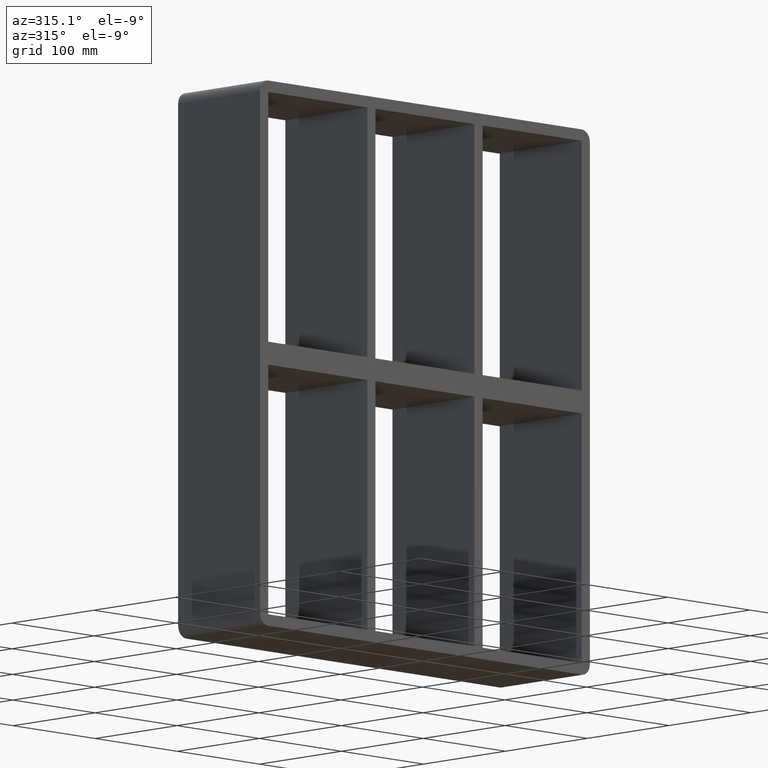
[diagram: clean part render]
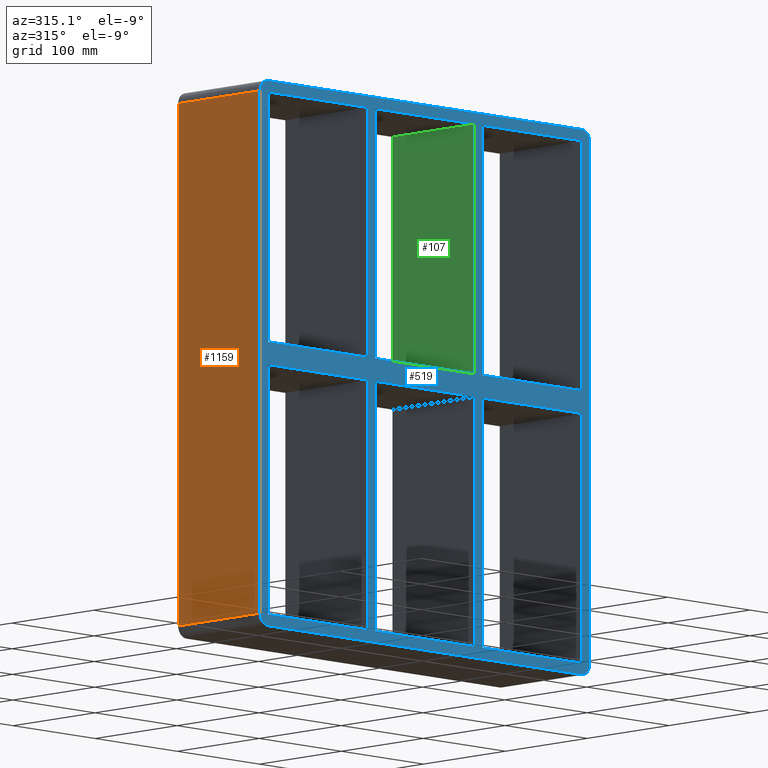
[diagram: same view with three faces highlighted in distinct colors, each labeled with its STEP entity id]
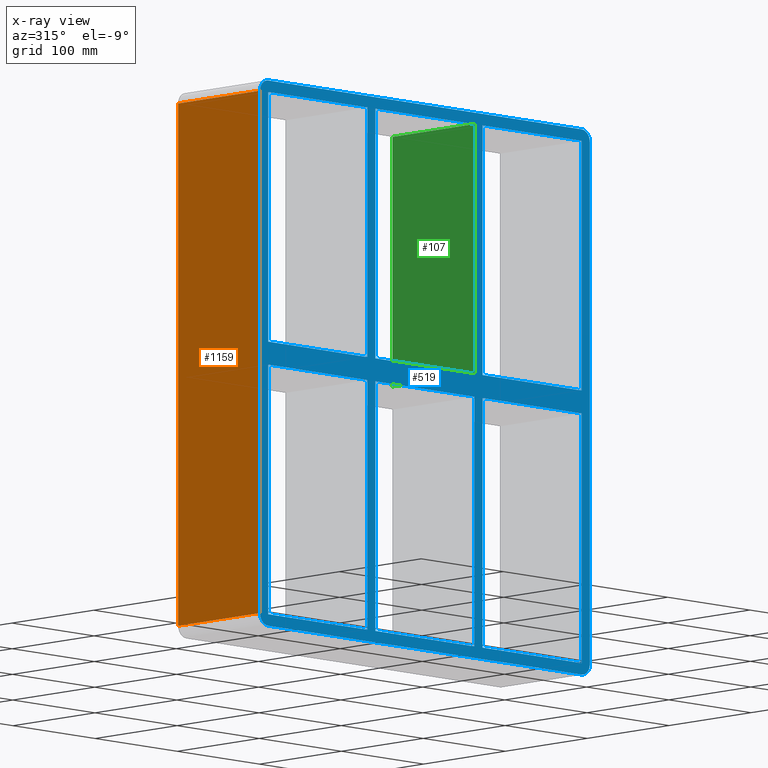
[diagram: x-ray of the same camera — body ghosted, the three highlighted faces saturated]
A machine part, auxiliary view with three faces highlighted in distinct colors.
The next image is the same camera in x-ray (body ghosted, the three faces saturated) — at least one of them is partly hidden behind the body in this view.
Their STEP definitions:

[orange] entity #1159 — the highlighted planar face has unit normal (-1, 0, 0).
#297=CARTESIAN_POINT('',(-200.75000000000003,-3.0,-227.99999999999997));
#298=VERTEX_POINT('',#297);
#348=CARTESIAN_POINT('',(-200.75000000000003,-3.0,228.00000000000006));
#349=VERTEX_POINT('',#348);
#357=CARTESIAN_POINT('',(-200.75000000000003,-3.0,228.00000000000003));
#358=DIRECTION('',(0.0,0.0,-1.0));
#359=VECTOR('',#358,456.0);
#360=LINE('',#357,#359);
#361=EDGE_CURVE('',#349,#298,#360,.T.);
#789=CARTESIAN_POINT('',(-200.75000000000003,97.0,-227.99999999999997));
#790=VERTEX_POINT('',#789);
#800=CARTESIAN_POINT('',(-200.75000000000003,97.0,228.00000000000006));
#801=VERTEX_POINT('',#800);
#802=CARTESIAN_POINT('',(-200.75000000000003,97.0,-227.99999999999997));
#803=DIRECTION('',(0.0,0.0,1.0));
#804=VECTOR('',#803,456.0);
#805=LINE('',#802,#804);
#806=EDGE_CURVE('',#790,#801,#805,.T.);
#1037=CARTESIAN_POINT('',(-200.75000000000003,-3.0,-227.99999999999997));
#1038=DIRECTION('',(0.0,1.0,0.0));
#1039=VECTOR('',#1038,100.0);
#1040=LINE('',#1037,#1039);
#1041=EDGE_CURVE('',#298,#790,#1040,.T.);
#1125=CARTESIAN_POINT('',(-200.75000000000003,97.0,228.00000000000006));
#1126=DIRECTION('',(0.0,-1.0,0.0));
#1127=VECTOR('',#1126,100.0);
#1128=LINE('',#1125,#1127);
#1129=EDGE_CURVE('',#801,#349,#1128,.T.);
#1148=CARTESIAN_POINT('',(-200.75000000000003,0.0,-237.99999999999997));
#1149=DIRECTION('',(-1.0,0.0,0.0));
#1150=DIRECTION('',(0.0,0.0,1.0));
#1151=AXIS2_PLACEMENT_3D('',#1148,#1149,#1150);
#1152=PLANE('',#1151);
#1153=ORIENTED_EDGE('',*,*,#1041,.F.);
#1154=ORIENTED_EDGE('',*,*,#361,.F.);
#1155=ORIENTED_EDGE('',*,*,#1129,.F.);
#1156=ORIENTED_EDGE('',*,*,#806,.F.);
#1157=EDGE_LOOP('',(#1153,#1154,#1155,#1156));
#1158=FACE_OUTER_BOUND('',#1157,.T.);
#1159=ADVANCED_FACE('',(#1158),#1152,.T.);

[blue] entity #519 — the highlighted planar face has unit normal (0, 1, 0).
#73=CARTESIAN_POINT('',(60.249999999998735,-3.0,10.0));
#74=VERTEX_POINT('',#73);
#83=CARTESIAN_POINT('',(60.249999999998693,-3.0,228.00000000000006));
#84=VERTEX_POINT('',#83);
#85=CARTESIAN_POINT('',(60.249999999998728,-3.0,10.0));
#86=DIRECTION('',(0.0,0.0,1.0));
#87=VECTOR('',#86,218.00000000000006);
#88=LINE('',#85,#87);
#89=EDGE_CURVE('',#74,#84,#88,.T.);
#115=CARTESIAN_POINT('',(60.249999999998735,-3.0,-10.000000000015525));
#116=VERTEX_POINT('',#115);
#131=CARTESIAN_POINT('',(60.249999999998778,-3.0,-228.00000000000006));
#132=VERTEX_POINT('',#131);
#139=CARTESIAN_POINT('',(60.249999999998778,-3.0,-228.00000000000006));
#140=DIRECTION('',(0.0,0.0,1.0));
#141=VECTOR('',#140,217.99999999998451);
#142=LINE('',#139,#141);
#143=EDGE_CURVE('',#132,#116,#142,.T.);
#155=CARTESIAN_POINT('',(70.249999999985448,-3.0,10.0));
#156=VERTEX_POINT('',#155);
#171=CARTESIAN_POINT('',(70.249999999985448,-3.0,228.00000000000006));
#172=VERTEX_POINT('',#171);
#179=CARTESIAN_POINT('',(70.249999999985448,-3.0,228.00000000000006));
#180=DIRECTION('',(0.0,0.0,-1.0));
#181=VECTOR('',#180,218.00000000000006);
#182=LINE('',#179,#181);
#183=EDGE_CURVE('',#172,#156,#182,.T.);
#193=CARTESIAN_POINT('',(70.249999999985448,-3.0,-10.000000000015525));
#194=VERTEX_POINT('',#193);
#203=CARTESIAN_POINT('',(70.249999999985448,-3.0,-227.99999999997468));
#204=VERTEX_POINT('',#203);
#205=CARTESIAN_POINT('',(70.249999999985448,-3.0,-10.000000000015518));
#206=DIRECTION('',(0.0,0.0,-1.0));
#207=VECTOR('',#206,217.99999999995913);
#208=LINE('',#205,#207);
#209=EDGE_CURVE('',#194,#204,#208,.T.);
#242=CARTESIAN_POINT('',(-60.250000000014552,-3.0,-227.99999999997468));
#243=VERTEX_POINT('',#242);
#250=CARTESIAN_POINT('',(60.249999999998778,-3.0,-228.00000000000006));
#251=DIRECTION('',(-1.0,0.0,0.0));
#252=VECTOR('',#251,120.50000000001333);
#253=LINE('',#250,#252);
#254=EDGE_CURVE('',#132,#243,#253,.T.);
#265=CARTESIAN_POINT('',(190.75,-3.0,-228.00000000000006));
#266=VERTEX_POINT('',#265);
#267=CARTESIAN_POINT('',(190.75,-3.0,-228.00000000000006));
#268=DIRECTION('',(-1.0,0.0,0.0));
#269=VECTOR('',#268,120.50000000001454);
#270=LINE('',#267,#269);
#271=EDGE_CURVE('',#266,#204,#270,.T.);
#290=CARTESIAN_POINT('',(0.0,-3.0,2.915047E-014));
#291=DIRECTION('',(0.0,1.0,0.0));
#292=DIRECTION('',(0.0,0.0,1.0));
#293=AXIS2_PLACEMENT_3D('',#290,#291,#292);
#294=PLANE('',#293);
#295=CARTESIAN_POINT('',(-190.75000000000003,-3.0,-237.99999999999997));
#296=VERTEX_POINT('',#295);
#297=CARTESIAN_POINT('',(-200.75000000000003,-3.0,-227.99999999999997));
#298=VERTEX_POINT('',#297);
#299=CARTESIAN_POINT('',(-190.75000000000003,-3.0,-227.99999999999997));
#300=DIRECTION('',(0.0,1.0,0.0));
#301=DIRECTION('',(-0.707106781186547,0.0,-0.707106781186547));
#302=AXIS2_PLACEMENT_3D('',#299,#300,#301);
#303=CIRCLE('',#302,9.999999999999998);
#304=EDGE_CURVE('',#296,#298,#303,.T.);
#305=ORIENTED_EDGE('',*,*,#304,.F.);
#306=CARTESIAN_POINT('',(190.75000000000003,-3.0,-237.99999999999997));
#307=VERTEX_POINT('',#306);
#308=CARTESIAN_POINT('',(-190.75000000000003,-3.0,-237.99999999999997));
#309=DIRECTION('',(1.0,0.0,0.0));
#310=VECTOR('',#309,381.50000000000006);
#311=LINE('',#308,#310);
#312=EDGE_CURVE('',#296,#307,#311,.T.);
#313=ORIENTED_EDGE('',*,*,#312,.T.);
#314=CARTESIAN_POINT('',(200.75000000000003,-3.0,-227.99999999999997));
#315=VERTEX_POINT('',#314);
#316=CARTESIAN_POINT('',(190.75000000000003,-3.0,-227.99999999999997));
#317=DIRECTION('',(0.0,1.0,0.0));
#318=DIRECTION('',(0.707106781186547,0.0,-0.707106781186547));
#319=AXIS2_PLACEMENT_3D('',#316,#317,#318);
#320=CIRCLE('',#319,9.999999999999998);
#321=EDGE_CURVE('',#315,#307,#320,.T.);
#322=ORIENTED_EDGE('',*,*,#321,.F.);
#323=CARTESIAN_POINT('',(200.75000000000003,-3.0,228.00000000000006));
#324=VERTEX_POINT('',#323);
#325=CARTESIAN_POINT('',(200.75000000000003,-3.0,-227.99999999999994));
#326=DIRECTION('',(0.0,0.0,1.0));
#327=VECTOR('',#326,456.0);
#328=LINE('',#325,#327);
#329=EDGE_CURVE('',#315,#324,#328,.T.);
#330=ORIENTED_EDGE('',*,*,#329,.T.);
#331=CARTESIAN_POINT('',(190.75000000000003,-3.0,238.00000000000006));
#332=VERTEX_POINT('',#331);
#333=CARTESIAN_POINT('',(190.75000000000003,-3.0,228.00000000000006));
#334=DIRECTION('',(0.0,1.0,0.0));
#335=DIRECTION('',(0.707106781186547,0.0,0.707106781186547));
#336=AXIS2_PLACEMENT_3D('',#333,#334,#335);
#337=CIRCLE('',#336,9.999999999999998);
#338=EDGE_CURVE('',#332,#324,#337,.T.);
#339=ORIENTED_EDGE('',*,*,#338,.F.);
#340=CARTESIAN_POINT('',(-190.75000000000003,-3.0,238.00000000000006));
#341=VERTEX_POINT('',#340);
#342=CARTESIAN_POINT('',(190.75000000000003,-3.0,238.00000000000006));
#343=DIRECTION('',(-1.0,0.0,0.0));
#344=VECTOR('',#343,381.50000000000006);
#345=LINE('',#342,#344);
#346=EDGE_CURVE('',#332,#341,#345,.T.);
#347=ORIENTED_EDGE('',*,*,#346,.T.);
#348=CARTESIAN_POINT('',(-200.75000000000003,-3.0,228.00000000000006));
#349=VERTEX_POINT('',#348);
#350=CARTESIAN_POINT('',(-190.75000000000003,-3.0,228.00000000000006));
#351=DIRECTION('',(0.0,1.0,0.0));
#352=DIRECTION('',(-0.707106781186547,0.0,0.707106781186547));
#353=AXIS2_PLACEMENT_3D('',#350,#351,#352);
#354=CIRCLE('',#353,9.999999999999998);
#355=EDGE_CURVE('',#349,#341,#354,.T.);
#356=ORIENTED_EDGE('',*,*,#355,.F.);
#357=CARTESIAN_POINT('',(-200.75000000000003,-3.0,228.00000000000003));
#358=DIRECTION('',(0.0,0.0,-1.0));
#359=VECTOR('',#358,456.0);
#360=LINE('',#357,#359);
#361=EDGE_CURVE('',#349,#298,#360,.T.);
#362=ORIENTED_EDGE('',*,*,#361,.T.);
#363=EDGE_LOOP('',(#305,#313,#322,#330,#339,#347,#356,#362));
#364=FACE_OUTER_BOUND('',#363,.T.);
#365=ORIENTED_EDGE('',*,*,#254,.T.);
#366=CARTESIAN_POINT('',(-60.250000000014552,-3.0,-10.000000000015586));
#367=VERTEX_POINT('',#366);
#368=CARTESIAN_POINT('',(-60.250000000014552,-3.0,-10.000000000015575));
#369=DIRECTION('',(0.0,0.0,-1.0));
#370=VECTOR('',#369,217.99999999995907);
#371=LINE('',#368,#370);
#372=EDGE_CURVE('',#367,#243,#371,.T.);
#373=ORIENTED_EDGE('',*,*,#372,.F.);
#374=CARTESIAN_POINT('',(60.249999999998749,-3.0,-10.000000000015545));
#375=DIRECTION('',(-1.0,0.0,0.0));
#376=VECTOR('',#375,120.5000000000133);
#377=LINE('',#374,#376);
#378=EDGE_CURVE('',#116,#367,#377,.T.);
#379=ORIENTED_EDGE('',*,*,#378,.F.);
#380=ORIENTED_EDGE('',*,*,#143,.F.);
#381=EDGE_LOOP('',(#365,#373,#379,#380));
#382=FACE_BOUND('',#381,.T.);
#383=CARTESIAN_POINT('',(-60.250000000014552,-3.0,10.0));
#384=VERTEX_POINT('',#383);
#385=CARTESIAN_POINT('',(-60.250000000014552,-3.0,10.0));
#386=DIRECTION('',(1.0,0.0,0.0));
#387=VECTOR('',#386,120.5000000000133);
#388=LINE('',#385,#387);
#389=EDGE_CURVE('',#384,#74,#388,.T.);
#390=ORIENTED_EDGE('',*,*,#389,.F.);
#391=CARTESIAN_POINT('',(-60.250000000014552,-3.0,228.00000000000006));
#392=VERTEX_POINT('',#391);
#393=CARTESIAN_POINT('',(-60.250000000014552,-3.0,228.00000000000006));
#394=DIRECTION('',(0.0,0.0,-1.0));
#395=VECTOR('',#394,218.00000000000006);
#396=LINE('',#393,#395);
#397=EDGE_CURVE('',#392,#384,#396,.T.);
#398=ORIENTED_EDGE('',*,*,#397,.F.);
#399=CARTESIAN_POINT('',(-60.250000000014552,-3.0,228.00000000000006));
#400=DIRECTION('',(1.0,0.0,0.0));
#401=VECTOR('',#400,120.50000000001323);
#402=LINE('',#399,#401);
#403=EDGE_CURVE('',#392,#84,#402,.T.);
#404=ORIENTED_EDGE('',*,*,#403,.T.);
#405=ORIENTED_EDGE('',*,*,#89,.F.);
#406=EDGE_LOOP('',(#390,#398,#404,#405));
#407=FACE_BOUND('',#406,.T.);
#408=ORIENTED_EDGE('',*,*,#183,.F.);
#409=CARTESIAN_POINT('',(190.75,-3.0,228.00000000000006));
#410=VERTEX_POINT('',#409);
#411=CARTESIAN_POINT('',(70.249999999985462,-3.0,228.00000000000006));
#412=DIRECTION('',(1.0,0.0,0.0));
#413=VECTOR('',#412,120.50000000001454);
#414=LINE('',#411,#413);
#415=EDGE_CURVE('',#172,#410,#414,.T.);
#416=ORIENTED_EDGE('',*,*,#415,.T.);
#417=CARTESIAN_POINT('',(190.74999999999989,-3.0,10.0));
#418=VERTEX_POINT('',#417);
#419=CARTESIAN_POINT('',(190.75,-3.0,228.00000000000006));
#420=DIRECTION('',(0.0,0.0,-1.0));
#421=VECTOR('',#420,218.00000000000006);
#422=LINE('',#419,#421);
#423=EDGE_CURVE('',#410,#418,#422,.T.);
#424=ORIENTED_EDGE('',*,*,#423,.T.);
#425=CARTESIAN_POINT('',(70.249999999985477,-3.0,10.0));
#426=DIRECTION('',(1.0,0.0,0.0));
#427=VECTOR('',#426,120.50000000001444);
#428=LINE('',#425,#427);
#429=EDGE_CURVE('',#156,#418,#428,.T.);
#430=ORIENTED_EDGE('',*,*,#429,.F.);
#431=EDGE_LOOP('',(#408,#416,#424,#430));
#432=FACE_BOUND('',#431,.T.);
#433=ORIENTED_EDGE('',*,*,#209,.F.);
#434=CARTESIAN_POINT('',(190.75000000000728,-3.0,-10.000000000015499));
#435=VERTEX_POINT('',#434);
#436=CARTESIAN_POINT('',(190.75000000000728,-3.0,-10.000000000015499));
#437=DIRECTION('',(-1.0,0.0,0.0));
#438=VECTOR('',#437,120.50000000002183);
#439=LINE('',#436,#438);
#440=EDGE_CURVE('',#435,#194,#439,.T.);
#441=ORIENTED_EDGE('',*,*,#440,.F.);
#442=CARTESIAN_POINT('',(190.75,-3.0,-10.000000000015504));
#443=DIRECTION('',(0.0,0.0,-1.0));
#444=VECTOR('',#443,217.99999999998454);
#445=LINE('',#442,#444);
#446=EDGE_CURVE('',#435,#266,#445,.T.);
#447=ORIENTED_EDGE('',*,*,#446,.T.);
#448=ORIENTED_EDGE('',*,*,#271,.T.);
#449=EDGE_LOOP('',(#433,#441,#447,#448));
#450=FACE_BOUND('',#449,.T.);
#451=CARTESIAN_POINT('',(-70.250000000001265,-3.0,-10.000000000015589));
#452=VERTEX_POINT('',#451);
#453=CARTESIAN_POINT('',(-190.74999999999974,-3.0,-10.000000000015632));
#454=VERTEX_POINT('',#453);
#455=CARTESIAN_POINT('',(-70.250000000001251,-3.0,-10.000000000015589));
#456=DIRECTION('',(-1.0,0.0,0.0));
#457=VECTOR('',#456,120.49999999999852);
#458=LINE('',#455,#457);
#459=EDGE_CURVE('',#452,#454,#458,.T.);
#460=ORIENTED_EDGE('',*,*,#459,.F.);
#461=CARTESIAN_POINT('',(-70.250000000001222,-3.0,-228.00000000000006));
#462=VERTEX_POINT('',#461);
#463=CARTESIAN_POINT('',(-70.250000000001222,-3.0,-228.00000000000006));
#464=DIRECTION('',(0.0,0.0,1.0));
#465=VECTOR('',#464,217.99999999998445);
#466=LINE('',#463,#465);
#467=EDGE_CURVE('',#462,#452,#466,.T.);
#468=ORIENTED_EDGE('',*,*,#467,.F.);
#469=CARTESIAN_POINT('',(-190.75000000000006,-3.0,-228.00000000000006));
#470=VERTEX_POINT('',#469);
#471=CARTESIAN_POINT('',(-70.250000000001194,-3.0,-228.00000000000006));
#472=DIRECTION('',(-1.0,0.0,0.0));
#473=VECTOR('',#472,120.49999999999886);
#474=LINE('',#471,#473);
#475=EDGE_CURVE('',#462,#470,#474,.T.);
#476=ORIENTED_EDGE('',*,*,#475,.T.);
#477=CARTESIAN_POINT('',(-190.75000000000003,-3.0,-228.00000000000006));
#478=DIRECTION('',(0.0,0.0,1.0));
#479=VECTOR('',#478,217.99999999998442);
#480=LINE('',#477,#479);
#481=EDGE_CURVE('',#470,#454,#480,.T.);
#482=ORIENTED_EDGE('',*,*,#481,.T.);
#483=EDGE_LOOP('',(#460,#468,#476,#482));
#484=FACE_BOUND('',#483,.T.);
#485=CARTESIAN_POINT('',(-190.74999999999974,-3.0,10.0));
#486=VERTEX_POINT('',#485);
#487=CARTESIAN_POINT('',(-190.75000000000006,-3.0,228.00000000000006));
#488=VERTEX_POINT('',#487);
#489=CARTESIAN_POINT('',(-190.75000000000003,-3.0,10.0));
#490=DIRECTION('',(0.0,0.0,1.0));
#491=VECTOR('',#490,218.0);
#492=LINE('',#489,#491);
#493=EDGE_CURVE('',#486,#488,#492,.T.);
#494=ORIENTED_EDGE('',*,*,#493,.T.);
#495=CARTESIAN_POINT('',(-70.250000000001322,-3.0,228.00000000000006));
#496=VERTEX_POINT('',#495);
#497=CARTESIAN_POINT('',(-190.75000000000006,-3.0,228.00000000000006));
#498=DIRECTION('',(1.0,0.0,0.0));
#499=VECTOR('',#498,120.49999999999874);
#500=LINE('',#497,#499);
#501=EDGE_CURVE('',#488,#496,#500,.T.);
#502=ORIENTED_EDGE('',*,*,#501,.T.);
#503=CARTESIAN_POINT('',(-70.250000000001279,-3.0,10.0));
#504=VERTEX_POINT('',#503);
#505=CARTESIAN_POINT('',(-70.250000000001265,-3.0,10.0));
#506=DIRECTION('',(0.0,0.0,1.0));
#507=VECTOR('',#506,218.00000000000006);
#508=LINE('',#505,#507);
#509=EDGE_CURVE('',#504,#496,#508,.T.);
#510=ORIENTED_EDGE('',*,*,#509,.F.);
#511=CARTESIAN_POINT('',(-190.74999999999974,-3.0,10.0));
#512=DIRECTION('',(1.0,0.0,0.0));
#513=VECTOR('',#512,120.49999999999847);
#514=LINE('',#511,#513);
#515=EDGE_CURVE('',#486,#504,#514,.T.);
#516=ORIENTED_EDGE('',*,*,#515,.F.);
#517=EDGE_LOOP('',(#494,#502,#510,#516));
#518=FACE_BOUND('',#517,.T.);
#519=ADVANCED_FACE('',(#364,#382,#407,#432,#450,#484,#518),#294,.F.);

[green] entity #107 — the highlighted planar face has unit normal (-1, 0, 0).
#68=CARTESIAN_POINT('',(60.249999999998778,-3.0,-228.00000000000006));
#69=DIRECTION('',(-1.0,0.0,0.0));
#70=DIRECTION('',(0.0,0.0,1.0));
#71=AXIS2_PLACEMENT_3D('',#68,#69,#70);
#72=PLANE('',#71);
#73=CARTESIAN_POINT('',(60.249999999998735,-3.0,10.0));
#74=VERTEX_POINT('',#73);
#75=CARTESIAN_POINT('',(60.249999999998735,97.0,10.0));
#76=VERTEX_POINT('',#75);
#77=CARTESIAN_POINT('',(60.249999999998735,-3.0,10.0));
#78=DIRECTION('',(0.0,1.0,0.0));
#79=VECTOR('',#78,100.0);
#80=LINE('',#77,#79);
#81=EDGE_CURVE('',#74,#76,#80,.T.);
#82=ORIENTED_EDGE('',*,*,#81,.F.);
#83=CARTESIAN_POINT('',(60.249999999998693,-3.0,228.00000000000006));
#84=VERTEX_POINT('',#83);
#85=CARTESIAN_POINT('',(60.249999999998728,-3.0,10.0));
#86=DIRECTION('',(0.0,0.0,1.0));
#87=VECTOR('',#86,218.00000000000006);
#88=LINE('',#85,#87);
#89=EDGE_CURVE('',#74,#84,#88,.T.);
#90=ORIENTED_EDGE('',*,*,#89,.T.);
#91=CARTESIAN_POINT('',(60.249999999998693,97.0,228.00000000000006));
#92=VERTEX_POINT('',#91);
#93=CARTESIAN_POINT('',(60.2499999999987,97.0,228.00000000000006));
#94=DIRECTION('',(0.0,-1.0,0.0));
#95=VECTOR('',#94,100.0);
#96=LINE('',#93,#95);
#97=EDGE_CURVE('',#92,#84,#96,.T.);
#98=ORIENTED_EDGE('',*,*,#97,.F.);
#99=CARTESIAN_POINT('',(60.249999999998728,97.0,10.0));
#100=DIRECTION('',(0.0,0.0,1.0));
#101=VECTOR('',#100,218.00000000000006);
#102=LINE('',#99,#101);
#103=EDGE_CURVE('',#76,#92,#102,.T.);
#104=ORIENTED_EDGE('',*,*,#103,.F.);
#105=EDGE_LOOP('',(#82,#90,#98,#104));
#106=FACE_OUTER_BOUND('',#105,.T.);
#107=ADVANCED_FACE('',(#106),#72,.T.);